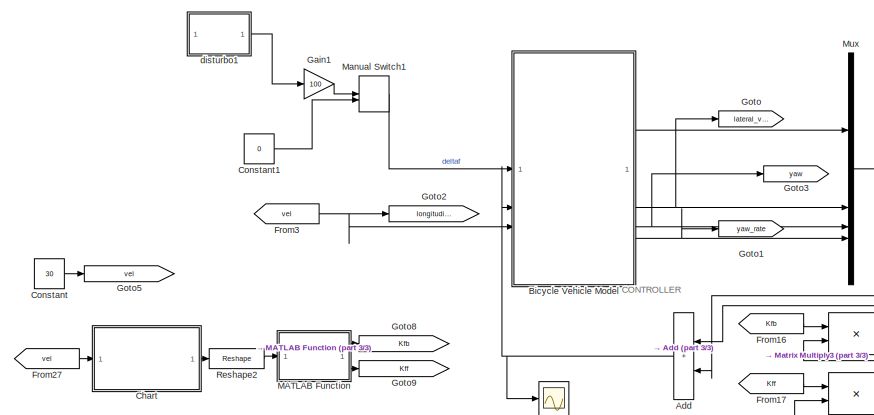
[diagram: root canvas - part 1/3, top left region]
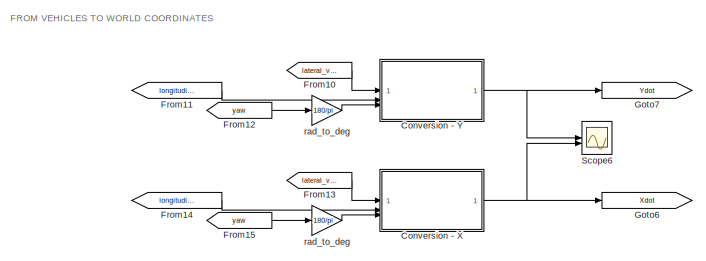
[diagram: root canvas - part 2/3, top right region]
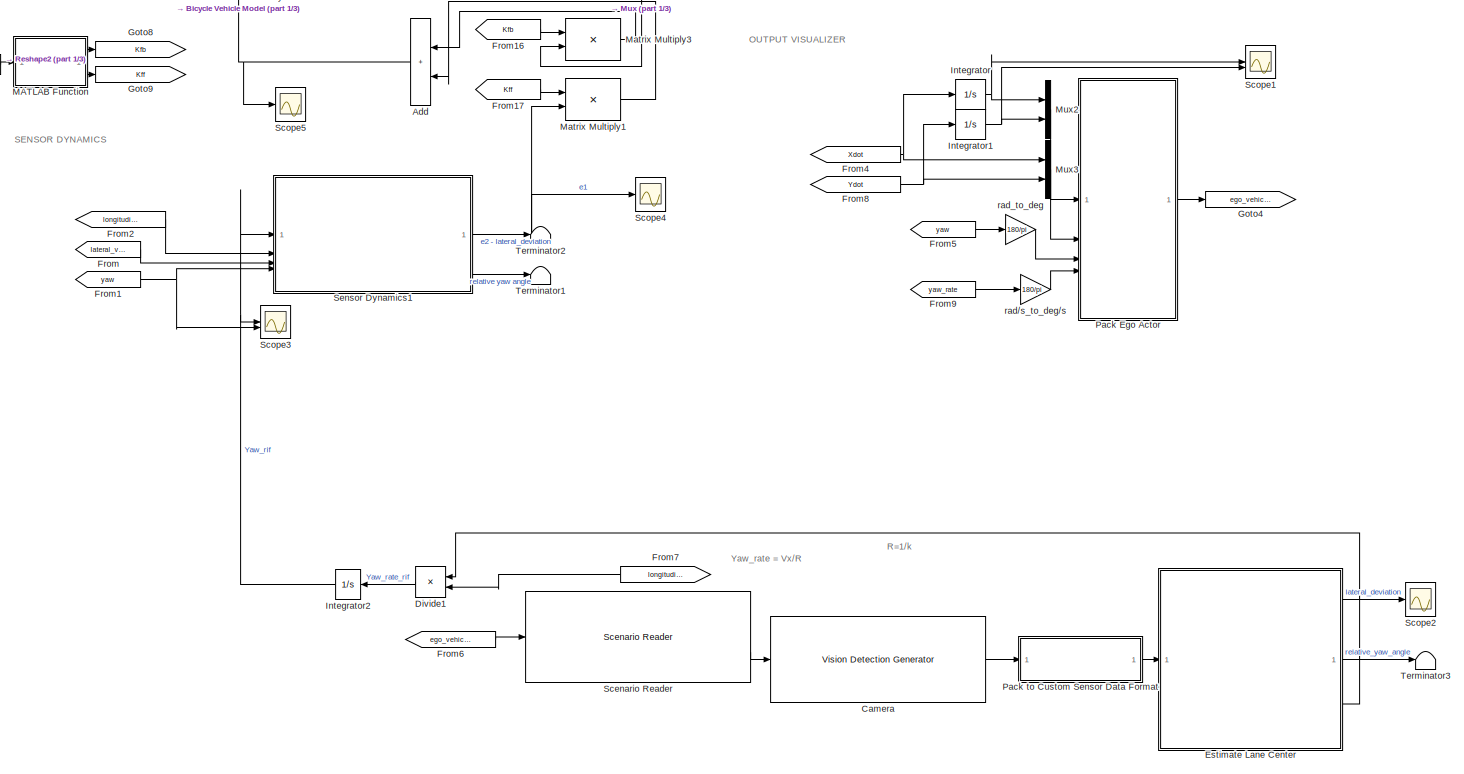
[diagram: root canvas - part 3/3, full width, middle band]
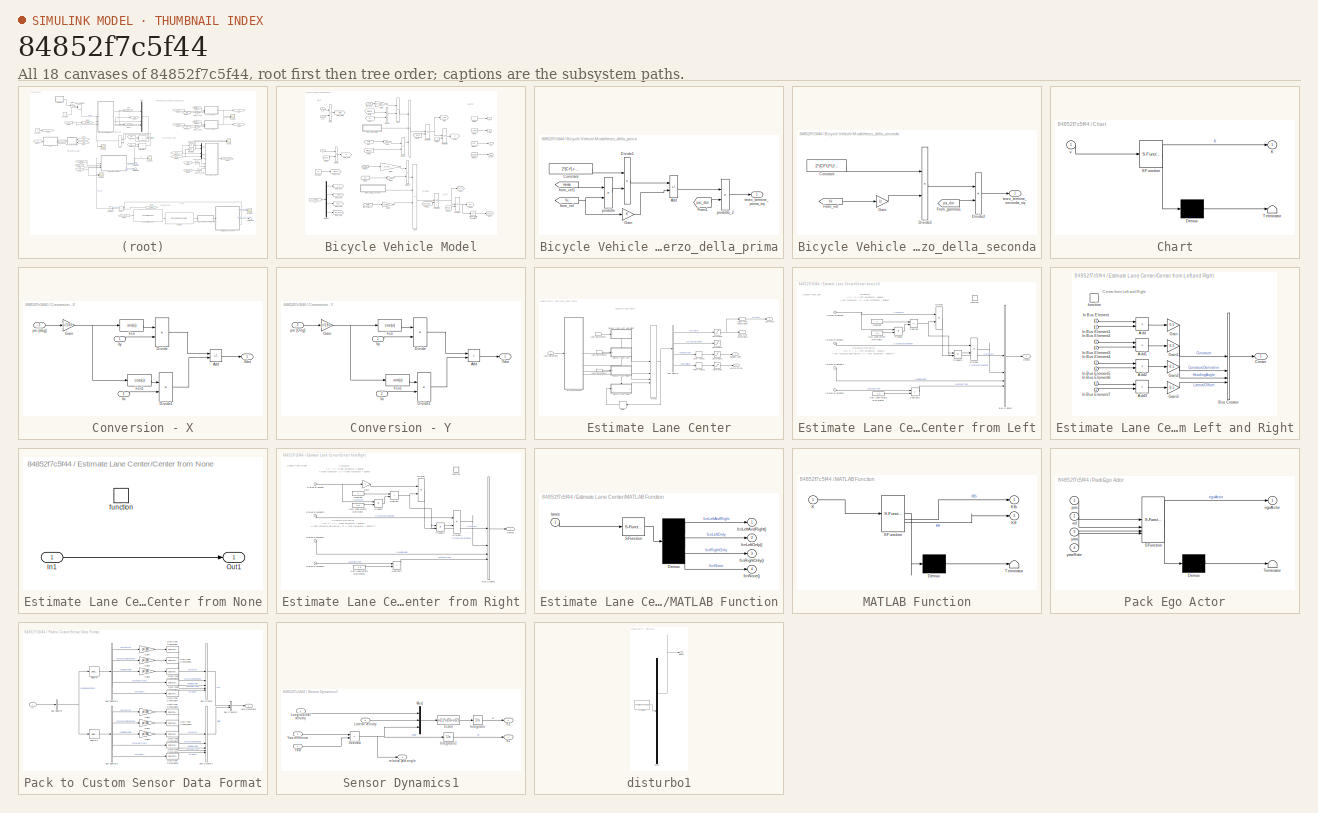
[diagram: thumbnail index - all 18 canvases of the model, root first then tree order]
MODEL slx_84852f7c5f44
KIND model
CONFIG AbsTol = auto
CONFIG EnableMultiTasking = off
CONFIG FixedStep = auto
CONFIG MaxStep = auto
CONFIG MinStep = auto
CONFIG RelTol = 1e-3
CONFIG SampleTimeConstraint = Unconstrained
CONFIG SolverName = ode23tb
CONFIG StartTime = 0.0
CONFIG StopTime = 50
WORKSPACE source: mxarray member
WORKSPACE BusActorsActors: canlib.Parameter (value not decoded)
BLOCK [Sum] Add
  IconShape = rectangular
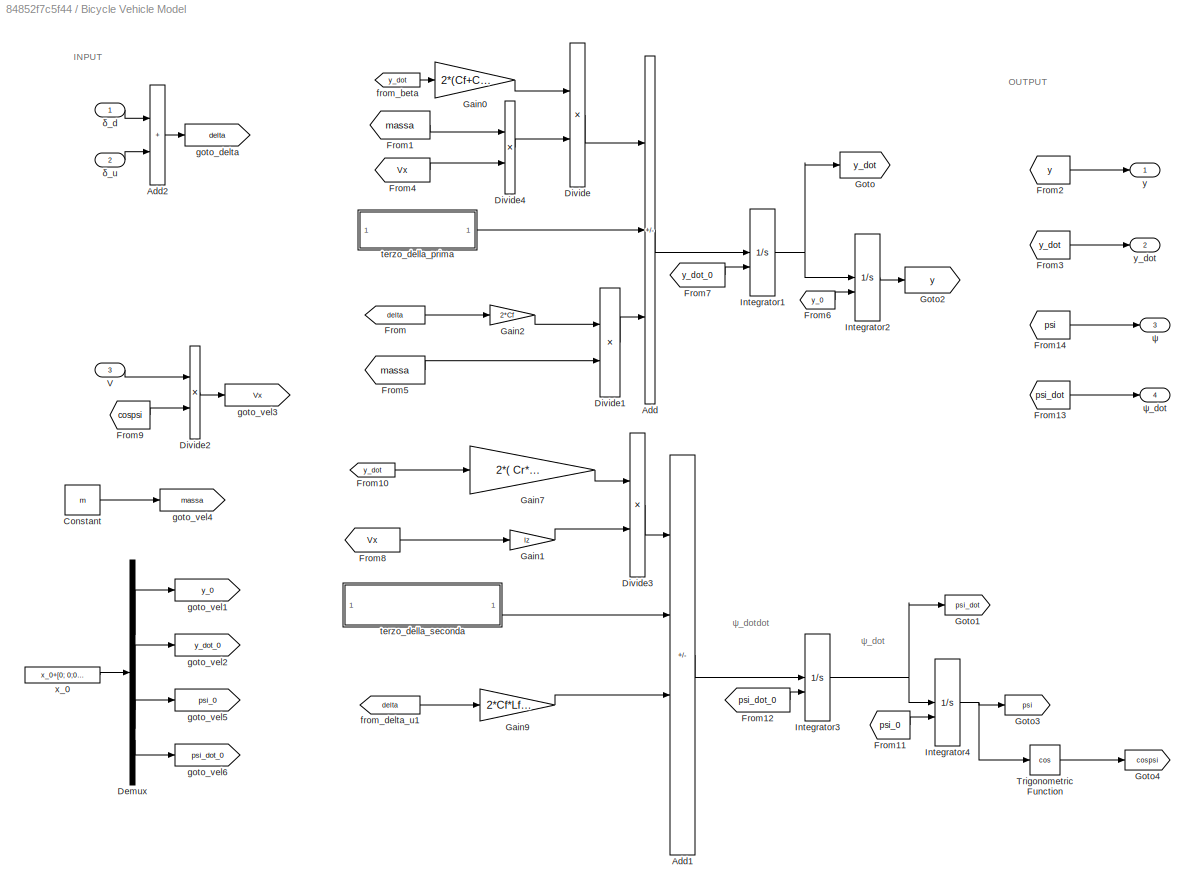
BLOCK [SubSystem] Bicycle Vehicle Model
BLOCK [Sum] Bicycle Vehicle Model/Add
  IconShape = rectangular
  Inputs = -++
BLOCK [Sum] Bicycle Vehicle Model/Add1
  IconShape = rectangular
  Inputs = --++
BLOCK [Sum] Bicycle Vehicle Model/Add2
  IconShape = rectangular
BLOCK [Constant] Bicycle Vehicle Model/Constant
  Value = m
BLOCK [Demux] Bicycle Vehicle Model/Demux
BLOCK [Product] Bicycle Vehicle Model/Divide
  Inputs = */
BLOCK [Product] Bicycle Vehicle Model/Divide1
  Inputs = */
BLOCK [Product] Bicycle Vehicle Model/Divide2
  Inputs = **
BLOCK [Product] Bicycle Vehicle Model/Divide3
  Inputs = */
BLOCK [Product] Bicycle Vehicle Model/Divide4
  Inputs = **
BLOCK [From] Bicycle Vehicle Model/From
  GotoTag = delta
  TagVisibility = global
BLOCK [From] Bicycle Vehicle Model/From1
  GotoTag = massa
  TagVisibility = global
BLOCK [From] Bicycle Vehicle Model/From10
  GotoTag = y_dot
  TagVisibility = global
BLOCK [From] Bicycle Vehicle Model/From11
  GotoTag = psi_0
  TagVisibility = global
BLOCK [From] Bicycle Vehicle Model/From12
  GotoTag = psi_dot_0
  TagVisibility = global
BLOCK [From] Bicycle Vehicle Model/From13
  GotoTag = psi_dot
  TagVisibility = global
BLOCK [From] Bicycle Vehicle Model/From14
  GotoTag = psi
  TagVisibility = global
BLOCK [From] Bicycle Vehicle Model/From2
  GotoTag = y
  TagVisibility = global
BLOCK [From] Bicycle Vehicle Model/From3
  GotoTag = y_dot
  TagVisibility = global
BLOCK [From] Bicycle Vehicle Model/From4
  GotoTag = Vx
  TagVisibility = global
BLOCK [From] Bicycle Vehicle Model/From5
  GotoTag = massa
  TagVisibility = global
BLOCK [From] Bicycle Vehicle Model/From6
  GotoTag = y_0
  TagVisibility = global
BLOCK [From] Bicycle Vehicle Model/From7
  GotoTag = y_dot_0
  TagVisibility = global
BLOCK [From] Bicycle Vehicle Model/From8
  GotoTag = Vx
  TagVisibility = global
BLOCK [From] Bicycle Vehicle Model/From9
  GotoTag = cospsi
  TagVisibility = global
BLOCK [Gain] Bicycle Vehicle Model/Gain0
  Gain = 2*(Cf+Cr)
BLOCK [Gain] Bicycle Vehicle Model/Gain1
  Gain = Iz
BLOCK [Gain] Bicycle Vehicle Model/Gain2
  Gain = 2*Cf
BLOCK [Gain] Bicycle Vehicle Model/Gain7
  Gain = 2*( Cr*Lr  - Cf*Lf )
BLOCK [Gain] Bicycle Vehicle Model/Gain9
  Gain = 2*Cf*Lf/Iz
BLOCK [Goto] Bicycle Vehicle Model/Goto
  GotoTag = y_dot
  TagVisibility = global
BLOCK [Goto] Bicycle Vehicle Model/Goto1
  GotoTag = psi_dot
  TagVisibility = global
BLOCK [Goto] Bicycle Vehicle Model/Goto2
  GotoTag = y
  TagVisibility = global
BLOCK [Goto] Bicycle Vehicle Model/Goto3
  GotoTag = psi
  TagVisibility = global
BLOCK [Goto] Bicycle Vehicle Model/Goto4
  GotoTag = cospsi
  TagVisibility = global
BLOCK [Integrator] Bicycle Vehicle Model/Integrator1
  InitialConditionSource = external
BLOCK [Integrator] Bicycle Vehicle Model/Integrator2
  InitialConditionSource = external
BLOCK [Integrator] Bicycle Vehicle Model/Integrator3
  InitialConditionSource = external
BLOCK [Integrator] Bicycle Vehicle Model/Integrator4
  InitialConditionSource = external
  LowerSaturationLimit = 0
BLOCK [Trigonometry] Bicycle Vehicle Model/Trigonometric Function
  Operator = cos
BLOCK [Inport] Bicycle Vehicle Model/V
  Port = 3
BLOCK [From] Bicycle Vehicle Model/from_beta
  GotoTag = y_dot
  TagVisibility = global
BLOCK [From] Bicycle Vehicle Model/from_delta_u1
  GotoTag = delta
  TagVisibility = global
BLOCK [Goto] Bicycle Vehicle Model/goto_delta 
  GotoTag = delta
  TagVisibility = global
BLOCK [Goto] Bicycle Vehicle Model/goto_vel1
  GotoTag = y_0
  TagVisibility = global
BLOCK [Goto] Bicycle Vehicle Model/goto_vel2
  GotoTag = y_dot_0
  TagVisibility = global
BLOCK [Goto] Bicycle Vehicle Model/goto_vel3
  GotoTag = Vx
  TagVisibility = global
BLOCK [Goto] Bicycle Vehicle Model/goto_vel4
  GotoTag = massa
  TagVisibility = global
BLOCK [Goto] Bicycle Vehicle Model/goto_vel5
  GotoTag = psi_0
  TagVisibility = global
BLOCK [Goto] Bicycle Vehicle Model/goto_vel6
  GotoTag = psi_dot_0
  TagVisibility = global
BLOCK [SubSystem] Bicycle Vehicle Model/terzo_della_prima
BLOCK [Sum] Bicycle Vehicle Model/terzo_della_prima/Add
  IconShape = rectangular
  Inputs = +-
BLOCK [Constant] Bicycle Vehicle Model/terzo_della_prima/Constant
  Value = 2*(Cr*Lr-  Cf*Lf)
BLOCK [Product] Bicycle Vehicle Model/terzo_della_prima/Divide1
  Inputs = */
BLOCK [From] Bicycle Vehicle Model/terzo_della_prima/From1
  GotoTag = psi_dot
  TagVisibility = global
BLOCK [Gain] Bicycle Vehicle Model/terzo_della_prima/Gain
BLOCK [From] Bicycle Vehicle Model/terzo_della_prima/from_vel
  GotoTag = Vx
  TagVisibility = global
BLOCK [From] Bicycle Vehicle Model/terzo_della_prima/from_vel1
  GotoTag = massa
  TagVisibility = global
BLOCK [Product] Bicycle Vehicle Model/terzo_della_prima/prodotto
  Inputs = **
BLOCK [Product] Bicycle Vehicle Model/terzo_della_prima/prodotto_2
  Inputs = **
BLOCK [Outport] Bicycle Vehicle Model/terzo_della_prima/terzo_termine_prima_eq 
BLOCK [SubSystem] Bicycle Vehicle Model/terzo_della_seconda
BLOCK [Constant] Bicycle Vehicle Model/terzo_della_seconda/Constant
  Value = 2*(Cf*Lf*Lf + Cr*Lr*Lr)
BLOCK [Product] Bicycle Vehicle Model/terzo_della_seconda/Divide2
  Inputs = **
BLOCK [Product] Bicycle Vehicle Model/terzo_della_seconda/Divide3
  Inputs = */
BLOCK [From] Bicycle Vehicle Model/terzo_della_seconda/From_gamma1
  GotoTag = psi_dot
  TagVisibility = global
BLOCK [From] Bicycle Vehicle Model/terzo_della_seconda/From_vel
  GotoTag = Vx
  TagVisibility = global
BLOCK [Gain] Bicycle Vehicle Model/terzo_della_seconda/Gain
  Gain = Iz
BLOCK [Outport] Bicycle Vehicle Model/terzo_della_seconda/terzo_termine_seconda_eq 
BLOCK [Constant] Bicycle Vehicle Model/x_0 
  Value = x_0+[0; 0;0; 0]
BLOCK [Outport] Bicycle Vehicle Model/y
BLOCK [Outport] Bicycle Vehicle Model/y_dot
  Port = 2
BLOCK [Inport] Bicycle Vehicle Model/δ_d
BLOCK [Inport] Bicycle Vehicle Model/δ_u
  Port = 2
BLOCK [Outport] Bicycle Vehicle Model/ψ
  Port = 3
BLOCK [Outport] Bicycle Vehicle Model/ψ_dot
  Port = 4
BLOCK [Reference] Camera  REF=drivingscenarioandsensors/Vision Detection Generator
  SourceBlock = drivingscenarioandsensors/Vision Detection Generator
  SourceType = visionDetectionGenerator
BLOCK [SubSystem] Chart
  ErrorFcn = Stateflow.Translate.translate
  PermitHierarchicalResolution = ExplicitOnly
  SFBlockType = Chart
  TreatAsAtomicUnit = on
BLOCK [Demux] Chart/ Demux 
  Outputs = 1
BLOCK [S-Function] Chart/ SFunction 
  EnableBusSupport = on
  FunctionName = sf_sfun
  PortCounts = [1 2]
  SFcnIsStateOwnerBlock = off
  SFunctionDeploymentMode = off
  Tag = Stateflow S-Function 1
BLOCK [Terminator] Chart/ Terminator 
BLOCK [Outport] Chart/K
BLOCK [Inport] Chart/v
BLOCK [Constant] Constant
  Value = 30
BLOCK [Constant] Constant1
  Value = 0
BLOCK [SubSystem] Conversion - X
BLOCK [Sum] Conversion - X/Add
  IconShape = rectangular
  Inputs = -+
BLOCK [Product] Conversion - X/Divide
  Inputs = **
BLOCK [Product] Conversion - X/Divide1
  Inputs = **
BLOCK [Fcn] Conversion - X/Fcn
  Expr = sin(u)
BLOCK [Fcn] Conversion - X/Fcn1
  Expr = cos(u)
BLOCK [Gain] Conversion - X/Gain
  Gain = pi/180
BLOCK [Inport] Conversion - X/Vx
  Port = 2
BLOCK [Inport] Conversion - X/Vy
BLOCK [Outport] Conversion - X/Xdot
BLOCK [Inport] Conversion - X/psi [deg]
  Port = 3
BLOCK [SubSystem] Conversion - Y
BLOCK [Sum] Conversion - Y/Add
  IconShape = rectangular
BLOCK [Product] Conversion - Y/Divide
  Inputs = **
BLOCK [Product] Conversion - Y/Divide1
  Inputs = **
BLOCK [Fcn] Conversion - Y/Fcn
  Expr = cos(u)
BLOCK [Fcn] Conversion - Y/Fcn1
  Expr = sin(u)
BLOCK [Gain] Conversion - Y/Gain
  Gain = pi/180
BLOCK [Inport] Conversion - Y/Vx
  Port = 2
BLOCK [Inport] Conversion - Y/Vy
BLOCK [Outport] Conversion - Y/Ydot
BLOCK [Inport] Conversion - Y/psi [Deg]
  Port = 3
BLOCK [Product] Divide1
  Inputs = **
BLOCK [SubSystem] Estimate Lane Center
  VariantControl = v2
BLOCK [Outport] Estimate Lane Center/ Curvature
  Port = 3
  VectorParamsAs1DForOutWhenUnconnected = off
BLOCK [BusSelector] Estimate Lane Center/Bus Selector
  OutputSignals = Curvature,CurvatureDerivative,HeadingAngle,LateralOffset
BLOCK [SubSystem] Estimate Lane Center/Center from Left
  TreatAsAtomicUnit = on
BLOCK [SubSystem] Estimate Lane Center/Center from Left and Right
  TreatAsAtomicUnit = on
BLOCK [Sum] Estimate Lane Center/Center from Left and Right/Add
  IconShape = rectangular
BLOCK [Sum] Estimate Lane Center/Center from Left and Right/Add1
  IconShape = rectangular
BLOCK [Sum] Estimate Lane Center/Center from Left and Right/Add2
  IconShape = rectangular
BLOCK [Sum] Estimate Lane Center/Center from Left and Right/Add3
  IconShape = rectangular
BLOCK [BusCreator] Estimate Lane Center/Center from Left and Right/Bus Creator
  DisplayOption = bar
  InheritFromInputs = on
  Inputs = 4
BLOCK [Outport] Estimate Lane Center/Center from Left and Right/Center
  VectorParamsAs1DForOutWhenUnconnected = off
BLOCK [Gain] Estimate Lane Center/Center from Left and Right/Gain
  Gain = 0.5
BLOCK [Gain] Estimate Lane Center/Center from Left and Right/Gain1
  Gain = 0.5
BLOCK [Gain] Estimate Lane Center/Center from Left and Right/Gain2
  Gain = 0.5
BLOCK [Gain] Estimate Lane Center/Center from Left and Right/Gain3
  Gain = 0.5
BLOCK [Inport] Estimate Lane Center/Center from Left and Right/In Bus Element
BLOCK [Inport] Estimate Lane Center/Center from Left and Right/In Bus Element1
BLOCK [Inport] Estimate Lane Center/Center from Left and Right/In Bus Element2
BLOCK [Inport] Estimate Lane Center/Center from Left and Right/In Bus Element3
BLOCK [Inport] Estimate Lane Center/Center from Left and Right/In Bus Element4
BLOCK [Inport] Estimate Lane Center/Center from Left and Right/In Bus Element5
BLOCK [Inport] Estimate Lane Center/Center from Left and Right/In Bus Element6
BLOCK [Inport] Estimate Lane Center/Center from Left and Right/In Bus Element7
BLOCK [TriggerPort] Estimate Lane Center/Center from Left and Right/function
  StatesWhenEnabling = held
  TriggerType = function-call
  VariantControl = Variant
BLOCK [BusCreator] Estimate Lane Center/Center from Left/Bus Creator
  DisplayOption = bar
  InheritFromInputs = on
  Inputs = 4
BLOCK [Outport] Estimate Lane Center/Center from Left/Center
  VectorParamsAs1DForOutWhenUnconnected = off
BLOCK [Constant] Estimate Lane Center/Center from Left/Constant
  OutDataTypeStr = Inherit: Inherit via back propagation
BLOCK [Product] Estimate Lane Center/Center from Left/Divide
  Inputs = */
BLOCK [Product] Estimate Lane Center/Center from Left/Divide1
  Inputs = */
BLOCK [Constant] Estimate Lane Center/Center from Left/Half Lane Width Estimate
  OutDataTypeStr = Inherit: Inherit via back propagation
  Value = 1.8
BLOCK [Constant] Estimate Lane Center/Center from Left/Half Lane Width Estimate1
  OutDataTypeStr = Inherit: Inherit via back propagation
  Value = 1.8
BLOCK [Inport] Estimate Lane Center/Center from Left/In Bus Element
BLOCK [Inport] Estimate Lane Center/Center from Left/In Bus Element2
BLOCK [Inport] Estimate Lane Center/Center from Left/In Bus Element4
BLOCK [Inport] Estimate Lane Center/Center from Left/In Bus Element6
BLOCK [Product] Estimate Lane Center/Center from Left/Product
BLOCK [Product] Estimate Lane Center/Center from Left/Product1
BLOCK [Sum] Estimate Lane Center/Center from Left/Subtract
  IconShape = rectangular
  Inputs = +-
BLOCK [Sum] Estimate Lane Center/Center from Left/Subtract1
  IconShape = rectangular
  Inputs = +-
BLOCK [TriggerPort] Estimate Lane Center/Center from Left/function
  StatesWhenEnabling = held
  TriggerType = function-call
  VariantControl = Variant
BLOCK [SubSystem] Estimate Lane Center/Center from None
  TreatAsAtomicUnit = on
BLOCK [Inport] Estimate Lane Center/Center from None/In1
BLOCK [Outport] Estimate Lane Center/Center from None/Out1
  VectorParamsAs1DForOutWhenUnconnected = off
BLOCK [TriggerPort] Estimate Lane Center/Center from None/function
  StatesWhenEnabling = held
  TriggerType = function-call
  VariantControl = Variant
BLOCK [SubSystem] Estimate Lane Center/Center from Right
  TreatAsAtomicUnit = on
BLOCK [BusCreator] Estimate Lane Center/Center from Right/Bus Creator
  DisplayOption = bar
  InheritFromInputs = on
  Inputs = 4
BLOCK [Outport] Estimate Lane Center/Center from Right/Center
  VectorParamsAs1DForOutWhenUnconnected = off
BLOCK [Constant] Estimate Lane Center/Center from Right/Constant
  OutDataTypeStr = Inherit: Inherit via back propagation
BLOCK [Product] Estimate Lane Center/Center from Right/Divide
  Inputs = */
BLOCK [Product] Estimate Lane Center/Center from Right/Divide1
  Inputs = */
BLOCK [Gain] Estimate Lane Center/Center from Right/Gain
BLOCK [Constant] Estimate Lane Center/Center from Right/Half Lane Width Estimate
  OutDataTypeStr = Inherit: Inherit via back propagation
  Value = 1.8
BLOCK [Constant] Estimate Lane Center/Center from Right/Half Lane Width Estimate1
  OutDataTypeStr = Inherit: Inherit via back propagation
  Value = 1.8
BLOCK [Inport] Estimate Lane Center/Center from Right/In Bus Element
BLOCK [Inport] Estimate Lane Center/Center from Right/In Bus Element2
BLOCK [Inport] Estimate Lane Center/Center from Right/In Bus Element4
BLOCK [Inport] Estimate Lane Center/Center from Right/In Bus Element6
BLOCK [Product] Estimate Lane Center/Center from Right/Product
BLOCK [Product] Estimate Lane Center/Center from Right/Product1
BLOCK [Sum] Estimate Lane Center/Center from Right/Subtract
  IconShape = rectangular
BLOCK [Sum] Estimate Lane Center/Center from Right/Subtract1
  IconShape = rectangular
BLOCK [TriggerPort] Estimate Lane Center/Center from Right/function
  StatesWhenEnabling = held
  TriggerType = function-call
  VariantControl = Variant
BLOCK [DataTypeConversion] Estimate Lane Center/Data Type Conversion1
  OutDataTypeStr = double
  RndMeth = Floor
  SaturateOnIntegerOverflow = off
BLOCK [DataTypeConversion] Estimate Lane Center/Data Type Conversion3
  OutDataTypeStr = double
  RndMeth = Floor
  SaturateOnIntegerOverflow = off
BLOCK [Delay] Estimate Lane Center/Delay
  DelayLength = 1
  InputPortMap = u0
BLOCK [Outport] Estimate Lane Center/Heading Angle
  Port = 2
  VectorParamsAs1DForOutWhenUnconnected = off
BLOCK [Inport] Estimate Lane Center/Lane Detections
BLOCK [InportShadow] Estimate Lane Center/Lane Detections2
BLOCK [InportShadow] Estimate Lane Center/Lane Detections3
BLOCK [InportShadow] Estimate Lane Center/Lane Detections4
BLOCK [Outport] Estimate Lane Center/Lateral Offset
  VectorParamsAs1DForOutWhenUnconnected = off
BLOCK [SubSystem] Estimate Lane Center/MATLAB Function
  ErrorFcn = Stateflow.Translate.translate
  PermitHierarchicalResolution = ExplicitOnly
  SFBlockType = MATLAB Function
  TreatAsAtomicUnit = on
BLOCK [Demux] Estimate Lane Center/MATLAB Function/ Demux 
BLOCK [S-Function] Estimate Lane Center/MATLAB Function/ SFunction 
  EnableBusSupport = on
  FunctionName = sf_sfun
  PortCounts = [1 1]
  SFcnIsStateOwnerBlock = off
  SFunctionDeploymentMode = off
  Tag = Stateflow S-Function 9
BLOCK [Outport] Estimate Lane Center/MATLAB Function/fcnLeftAndRight()
  VectorParamsAs1DForOutWhenUnconnected = off
BLOCK [Outport] Estimate Lane Center/MATLAB Function/fcnLeftOnly()
  Port = 2
  VectorParamsAs1DForOutWhenUnconnected = off
BLOCK [Outport] Estimate Lane Center/MATLAB Function/fcnNone()
  Port = 4
  VectorParamsAs1DForOutWhenUnconnected = off
BLOCK [Outport] Estimate Lane Center/MATLAB Function/fcnRightOnly()
  Port = 3
  VectorParamsAs1DForOutWhenUnconnected = off
BLOCK [Inport] Estimate Lane Center/MATLAB Function/lanes
BLOCK [Merge] Estimate Lane Center/Merge
  Inputs = 4
BLOCK [Saturate] Estimate Lane Center/Saturation
  UpperLimit = inf
BLOCK [Saturate] Estimate Lane Center/Saturation1
  LowerLimit = -0.6
  UpperLimit = 0.6
BLOCK [Saturate] Estimate Lane Center/Saturation2
  LowerLimit = -0.15
  UpperLimit = 0.15
BLOCK [Saturate] Estimate Lane Center/Saturation3
  LowerLimit = -0.15
  UpperLimit = 0.15
BLOCK [UnaryMinus] Estimate Lane Center/Unary Minus
BLOCK [UnaryMinus] Estimate Lane Center/Unary Minus1
BLOCK [From] From
  GotoTag = lateral_vel
BLOCK [From] From1
  GotoTag = yaw
BLOCK [From] From10
  GotoTag = lateral_vel
BLOCK [From] From11
  GotoTag = longitudinal_vel
BLOCK [From] From12
  GotoTag = yaw
BLOCK [From] From13
  GotoTag = lateral_vel
BLOCK [From] From14
  GotoTag = longitudinal_vel
BLOCK [From] From15
  GotoTag = yaw
BLOCK [From] From16
  GotoTag = Kfb
BLOCK [From] From17
  GotoTag = Kff
BLOCK [From] From2
  GotoTag = longitudinal_vel
BLOCK [From] From27
  GotoTag = vel
BLOCK [From] From3
  GotoTag = vel
BLOCK [From] From4
  GotoTag = Xdot
BLOCK [From] From5
  GotoTag = yaw
BLOCK [From] From6
  GotoTag = ego_vehicle
BLOCK [From] From7
  GotoTag = longitudinal_vel
BLOCK [From] From8
  GotoTag = Ydot
BLOCK [From] From9
  GotoTag = yaw_rate
BLOCK [Gain] Gain1
  Gain = 100
BLOCK [Goto] Goto
  GotoTag = lateral_vel
BLOCK [Goto] Goto1
  GotoTag = yaw_rate
BLOCK [Goto] Goto2
  GotoTag = longitudinal_vel
BLOCK [Goto] Goto3
  GotoTag = yaw
BLOCK [Goto] Goto4
  GotoTag = ego_vehicle
BLOCK [Goto] Goto5
  GotoTag = vel
BLOCK [Goto] Goto6
  GotoTag = Xdot
BLOCK [Goto] Goto7
  GotoTag = Ydot
BLOCK [Goto] Goto8
  GotoTag = Kfb
BLOCK [Goto] Goto9
  GotoTag = Kff
BLOCK [Integrator] Integrator
BLOCK [Integrator] Integrator1
  InitialCondition = -0.02
BLOCK [Integrator] Integrator2
BLOCK [SubSystem] MATLAB Function
  ErrorFcn = Stateflow.Translate.translate
  LibrarySourceBlock = simulink/User-Defined\nFunctions/MATLAB Function
  PermitHierarchicalResolution = ExplicitOnly
  SFBlockType = MATLAB Function
  TreatAsAtomicUnit = on
BLOCK [Demux] MATLAB Function/ Demux 
  Outputs = 1
BLOCK [S-Function] MATLAB Function/ SFunction 
  EnableBusSupport = on
  FunctionName = sf_sfun
  PortCounts = [1 3]
  SFcnIsStateOwnerBlock = off
  SFunctionDeploymentMode = off
  Tag = Stateflow S-Function 2
BLOCK [Terminator] MATLAB Function/ Terminator 
BLOCK [Inport] MATLAB Function/K
BLOCK [Outport] MATLAB Function/Kfb
BLOCK [Outport] MATLAB Function/Kff
  Port = 2
BLOCK [ManualSwitch] Manual Switch1
  CurrentSetting = 0
BLOCK [Product] Matrix Multiply1
  Multiplication = Matrix(*)
BLOCK [Product] Matrix Multiply3
  Multiplication = Matrix(*)
BLOCK [Mux] Mux
  DisplayOption = bar
BLOCK [Mux] Mux2
  DisplayOption = bar
  Inputs = 2
BLOCK [Mux] Mux3
  DisplayOption = bar
  Inputs = 2
BLOCK [SubSystem] Pack Ego Actor
  ErrorFcn = Stateflow.Translate.translate
  PermitHierarchicalResolution = ExplicitOnly
  SFBlockType = MATLAB Function
  TreatAsAtomicUnit = on
BLOCK [Demux] Pack Ego Actor/ Demux 
  Outputs = 1
BLOCK [S-Function] Pack Ego Actor/ SFunction 
  EnableBusSupport = on
  FunctionName = sf_sfun
  PortCounts = [4 2]
  SFcnIsStateOwnerBlock = off
  SFunctionDeploymentMode = off
  Tag = Stateflow S-Function 5
BLOCK [Terminator] Pack Ego Actor/ Terminator 
BLOCK [Outport] Pack Ego Actor/egoActor
  VectorParamsAs1DForOutWhenUnconnected = off
BLOCK [Inport] Pack Ego Actor/pos
BLOCK [Inport] Pack Ego Actor/vel
  Port = 2
BLOCK [Inport] Pack Ego Actor/yaw
  Port = 3
BLOCK [Inport] Pack Ego Actor/yawRate
  Port = 4
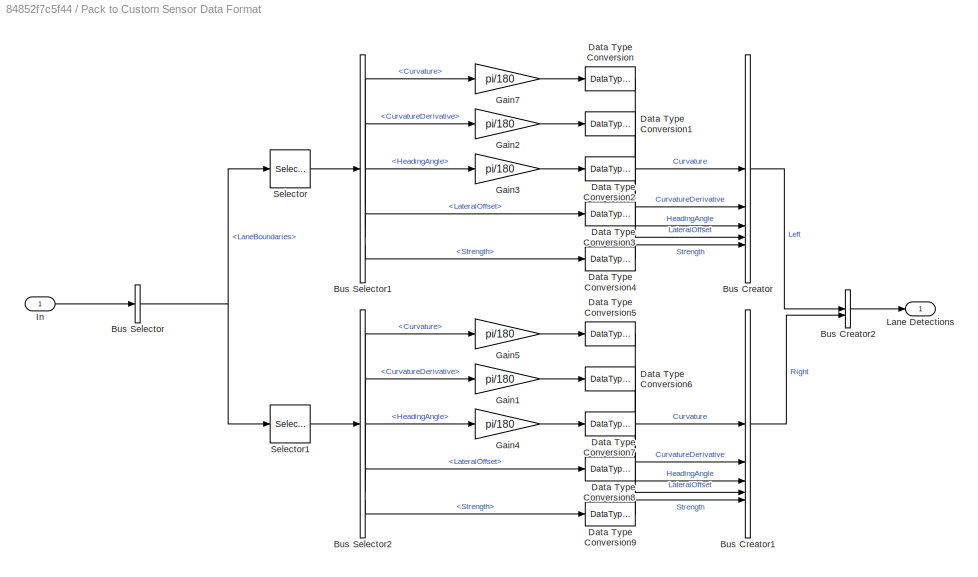
BLOCK [SubSystem] Pack to Custom Sensor Data Format
BLOCK [BusCreator] Pack to Custom Sensor Data Format/Bus Creator
  DisplayOption = bar
  InheritFromInputs = on
  Inputs = 5
  OutDataTypeStr = Bus: LaneSensorBoundaries
BLOCK [BusCreator] Pack to Custom Sensor Data Format/Bus Creator1
  DisplayOption = bar
  InheritFromInputs = on
  Inputs = 5
  OutDataTypeStr = Bus: LaneSensorBoundaries
BLOCK [BusCreator] Pack to Custom Sensor Data Format/Bus Creator2
  DisplayOption = bar
  InheritFromInputs = on
  Inputs = 2
  OutDataTypeStr = Bus: LaneSensor
BLOCK [BusSelector] Pack to Custom Sensor Data Format/Bus Selector
  OutputSignals = LaneBoundaries
BLOCK [BusSelector] Pack to Custom Sensor Data Format/Bus Selector1
  OutputSignals = Curvature,CurvatureDerivative,HeadingAngle,LateralOffset,Strength
BLOCK [BusSelector] Pack to Custom Sensor Data Format/Bus Selector2
  OutputSignals = Curvature,CurvatureDerivative,HeadingAngle,LateralOffset,Strength
BLOCK [DataTypeConversion] Pack to Custom Sensor Data Format/Data Type Conversion
  OutDataTypeStr = single
  RndMeth = Floor
  SaturateOnIntegerOverflow = off
BLOCK [DataTypeConversion] Pack to Custom Sensor Data Format/Data Type Conversion1
  OutDataTypeStr = single
  RndMeth = Floor
  SaturateOnIntegerOverflow = off
BLOCK [DataTypeConversion] Pack to Custom Sensor Data Format/Data Type Conversion2
  OutDataTypeStr = single
  RndMeth = Floor
  SaturateOnIntegerOverflow = off
BLOCK [DataTypeConversion] Pack to Custom Sensor Data Format/Data Type Conversion3
  OutDataTypeStr = single
  RndMeth = Floor
  SaturateOnIntegerOverflow = off
BLOCK [DataTypeConversion] Pack to Custom Sensor Data Format/Data Type Conversion4
  OutDataTypeStr = single
  RndMeth = Floor
  SaturateOnIntegerOverflow = off
BLOCK [DataTypeConversion] Pack to Custom Sensor Data Format/Data Type Conversion5
  OutDataTypeStr = single
  RndMeth = Floor
  SaturateOnIntegerOverflow = off
BLOCK [DataTypeConversion] Pack to Custom Sensor Data Format/Data Type Conversion6
  OutDataTypeStr = single
  RndMeth = Floor
  SaturateOnIntegerOverflow = off
BLOCK [DataTypeConversion] Pack to Custom Sensor Data Format/Data Type Conversion7
  OutDataTypeStr = single
  RndMeth = Floor
  SaturateOnIntegerOverflow = off
BLOCK [DataTypeConversion] Pack to Custom Sensor Data Format/Data Type Conversion8
  OutDataTypeStr = single
  RndMeth = Floor
  SaturateOnIntegerOverflow = off
BLOCK [DataTypeConversion] Pack to Custom Sensor Data Format/Data Type Conversion9
  OutDataTypeStr = single
  RndMeth = Floor
  SaturateOnIntegerOverflow = off
BLOCK [Gain] Pack to Custom Sensor Data Format/Gain1
  Gain = pi/180
BLOCK [Gain] Pack to Custom Sensor Data Format/Gain2
  Gain = pi/180
BLOCK [Gain] Pack to Custom Sensor Data Format/Gain3
  Gain = pi/180
BLOCK [Gain] Pack to Custom Sensor Data Format/Gain4
  Gain = pi/180
BLOCK [Gain] Pack to Custom Sensor Data Format/Gain5
  Gain = pi/180
BLOCK [Gain] Pack to Custom Sensor Data Format/Gain7
  Gain = pi/180
BLOCK [Inport] Pack to Custom Sensor Data Format/In
BLOCK [Outport] Pack to Custom Sensor Data Format/Lane Detections
  VectorParamsAs1DForOutWhenUnconnected = off
BLOCK [Selector] Pack to Custom Sensor Data Format/Selector
  IndexOptions = Index vector (dialog)
  Indices = 1
  InputPortWidth = 2
  OutputSizes = 1
BLOCK [Selector] Pack to Custom Sensor Data Format/Selector1
  IndexOptions = Index vector (dialog)
  Indices = 2
  InputPortWidth = 2
  OutputSizes = 1
BLOCK [Reshape] Reshape2
  OutputDimensionality = Customize
  OutputDimensions = [1,5]
BLOCK [Reference] Scenario Reader  REF=drivingscenarioandsensors/Scenario Reader
  SourceBlock = drivingscenarioandsensors/Scenario Reader
  SourceType = driving.scenario.internal.ScenarioReader
BLOCK [Scope] Scope1
  Floating = off
  NumInputPorts = 2
  ScopeSpecificationString = Simulink.scopes.TimeScopeBlockCfg('CurrentConfiguration', extmgr.ConfigurationSet(extmgr.Configuration('Core','General UI',true),extmgr.Configuration('Core','Source UI',true),extmgr.Configuration('Sources','WiredSimulink',true,'DataLoggingVariableName','ScopeData1'),extmgr.Configuration('Visuals','Time Domain',true,'SerializedDisplays',{struct('MinYLimReal','-47.45427','MaxYLimReal','443.48839','Y...<+2197ch>
BLOCK [Scope] Scope2
  Floating = off
  NumInputPorts = 1
  ScopeSpecificationString = Simulink.scopes.TimeScopeBlockCfg('CurrentConfiguration', extmgr.ConfigurationSet(extmgr.Configuration('Core','General UI',true),extmgr.Configuration('Core','Source UI',true),extmgr.Configuration('Sources','WiredSimulink',true,'DataLoggingVariableName','ScopeData1'),extmgr.Configuration('Visuals','Time Domain',true,'SerializedDisplays',{struct('MinYLimReal','-0.86733','MaxYLimReal','2.80593','YLab...<+2295ch>
BLOCK [Scope] Scope3
  Floating = off
  NumInputPorts = 2
  ScopeSpecificationString = Simulink.scopes.TimeScopeBlockCfg('CurrentConfiguration', extmgr.ConfigurationSet(extmgr.Configuration('Core','General UI',true),extmgr.Configuration('Core','Source UI',true),extmgr.Configuration('Sources','WiredSimulink',true,'DataLoggingVariableName','ScopeData1'),extmgr.Configuration('Visuals','Time Domain',true,'SerializedDisplays',{struct('MinYLimReal','-0.05762','MaxYLimReal','0.16228','YLab...<+1724ch>
BLOCK [Scope] Scope4
  Floating = off
  NumInputPorts = 1
  ScopeSpecificationString = Simulink.scopes.TimeScopeBlockCfg('CurrentConfiguration', extmgr.ConfigurationSet(extmgr.Configuration('Core','General UI',true),extmgr.Configuration('Core','Source UI',true),extmgr.Configuration('Sources','WiredSimulink',true,'DataLoggingVariableName','ScopeData1'),extmgr.Configuration('Visuals','Time Domain',true,'SerializedDisplays',{struct('MinYLimReal','-0.06474','MaxYLimReal','0.11625','YLab...<+2256ch>
BLOCK [Scope] Scope5
  Floating = off
  NumInputPorts = 1
  ScopeSpecificationString = Simulink.scopes.TimeScopeBlockCfg('CurrentConfiguration', extmgr.ConfigurationSet(extmgr.Configuration('Core','General UI',true),extmgr.Configuration('Core','Source UI',true),extmgr.Configuration('Sources','WiredSimulink',true,'DataLoggingVariableName','ScopeData2'),extmgr.Configuration('Visuals','Time Domain',true,'SerializedDisplays',{struct('MinYLimReal','-0.03713','MaxYLimReal','0.05633','YLab...<+2255ch>
BLOCK [Scope] Scope6
  Floating = off
  NumInputPorts = 2
  ScopeSpecificationString = Simulink.scopes.TimeScopeBlockCfg('CurrentConfiguration', extmgr.ConfigurationSet(extmgr.Configuration('Core','General UI',true),extmgr.Configuration('Core','Source UI',true),extmgr.Configuration('Sources','WiredSimulink',true,'DataLoggingVariableName','ScopeData1'),extmgr.Configuration('Visuals','Time Domain',true,'SerializedDisplays',{struct('MinYLimReal','-0.62584','MaxYLimReal','5.63253','YLab...<+2197ch>
BLOCK [SubSystem] Sensor Dynamics1
BLOCK [Integrator] Sensor Dynamics1/Integrator
BLOCK [Integrator] Sensor Dynamics1/Integrator2
BLOCK [Inport] Sensor Dynamics1/Lateral velocity
  Port = 3
BLOCK [Inport] Sensor Dynamics1/Longitudinal velocity
  Port = 2
BLOCK [Mux] Sensor Dynamics1/Mux1
  DisplayOption = bar
  Inputs = [1 1 1]
BLOCK [Sum] Sensor Dynamics1/Subtract
  IconShape = rectangular
  Inputs = +-
BLOCK [Inport] Sensor Dynamics1/Yaw 
  Port = 4
BLOCK [Inport] Sensor Dynamics1/Yaw reference
BLOCK [Outport] Sensor Dynamics1/e1
  VectorParamsAs1DForOutWhenUnconnected = off
BLOCK [Fcn] Sensor Dynamics1/e1dot
  Expr = u(1)*u(3)+u(2)
BLOCK [Outport] Sensor Dynamics1/e2
  Port = 2
  VectorParamsAs1DForOutWhenUnconnected = off
BLOCK [Outport] Sensor Dynamics1/relative yaw angle
  Port = 3
  VectorParamsAs1DForOutWhenUnconnected = off
BLOCK [Terminator] Terminator1
BLOCK [Terminator] Terminator2
BLOCK [Terminator] Terminator3
BLOCK [SubSystem] disturbo1
  ClipboardFcn = sigbuilder_block('clipboard');
  CloseFcn = sigbuilder_block('close');
  ContinueFcn = sigbuilder_block('continue');
  CopyFcn = sigbuilder_block('copy');
  DeleteFcn = sigbuilder_block('delete');
  LoadFcn = sigbuilder_block('load');
  MaskHideContents = on
  ModelCloseFcn = sigbuilder_block('modelClose');
  NameChangeFcn = sigbuilder_block('namechange');
  OpenFcn = sigbuilder_block('open',[406.2 255 401.4 229.8 ]);
  PauseFcn = sigbuilder_block('pause');
  PreSaveFcn = sigbuilder_block('preSave');
  StartFcn = sigbuilder_block('start');
  StopFcn = sigbuilder_block('stop');
  Tag = STV Subsys
BLOCK [Demux] disturbo1/Demux
  DisplayOption = none
  Outputs = 1
  Tag = STV Demux
BLOCK [FromWorkspace] disturbo1/FromWs
  Tag = STV FromWs
  VariableName = tuvar
BLOCK [Outport] disturbo1/Signal 1
  Tag = STV Outport
BLOCK [Gain] rad//s_to_deg//s
  Gain = 180/pi
BLOCK [Gain] rad_to_deg
  Gain = 180/pi
BLOCK [Gain] rad_to_deg 
  Gain = 180/pi
BLOCK [Gain] rad_to_deg  
  Gain = 180/pi
ANNOTATION (root): CONTROLLER
ANNOTATION (root): FROM VEHICLES TO WORLD COORDINATES
ANNOTATION (root): OUTPUT VISUALIZER
ANNOTATION (root): R=1/k
ANNOTATION (root): SENSOR DYNAMICS
ANNOTATION (root): Yaw_rate = Vx/R
ANNOTATION Bicycle Vehicle Model: ψ_dot
ANNOTATION Bicycle Vehicle Model: ψ_dotdot
ANNOTATION Bicycle Vehicle Model: INPUT
ANNOTATION Bicycle Vehicle Model: OUTPUT
ANNOTATION Estimate Lane Center: Estimate Lane Center
ANNOTATION Estimate Lane Center/Center from Left: Center from Left
ANNOTATION Estimate Lane Center/Center from Left: Curvature = 1 / ( 1 / (left curvature) – guard) = left curvature / (1 – (left curvature) * guard).
ANNOTATION Estimate Lane Center/Center from Left: Curvature Derivative = D[ 1 / ( 1 / (left curvature) – guard)] = left curvature derivative / (1 – (left curvature) * guard)^2.
ANNOTATION Estimate Lane Center/Center from Left and Right: Center from Left and Right
ANNOTATION Estimate Lane Center/Center from Right: Center from Right
ANNOTATION Estimate Lane Center/Center from Right: Curvature = 1 / ( 1 / (right curvature) + guard) = right curvature / (1 + (right curvature) * guard)
ANNOTATION Estimate Lane Center/Center from Right: Curvature Derivative = D[ 1 / ( 1 / (right curvature) + guard)] = right curvature derivative / (1 + (right curvature) * guard)^2
NET Add:1 -> Bicycle Vehicle Model:2, Scope5:1
LINE Bicycle Vehicle Model/Add1:1 -> Bicycle Vehicle Model/Integrator3:1
LINE Bicycle Vehicle Model/Add2:1 -> Bicycle Vehicle Model/goto_delta :1
LINE Bicycle Vehicle Model/Add:1 -> Bicycle Vehicle Model/Integrator1:1
LINE Bicycle Vehicle Model/Constant:1 -> Bicycle Vehicle Model/goto_vel4:1
LINE Bicycle Vehicle Model/Demux:1 -> Bicycle Vehicle Model/goto_vel1:1
LINE Bicycle Vehicle Model/Demux:2 -> Bicycle Vehicle Model/goto_vel2:1
LINE Bicycle Vehicle Model/Demux:3 -> Bicycle Vehicle Model/goto_vel5:1
LINE Bicycle Vehicle Model/Demux:4 -> Bicycle Vehicle Model/goto_vel6:1
LINE Bicycle Vehicle Model/Divide1:1 -> Bicycle Vehicle Model/Add:3
LINE Bicycle Vehicle Model/Divide2:1 -> Bicycle Vehicle Model/goto_vel3:1
LINE Bicycle Vehicle Model/Divide3:1 -> Bicycle Vehicle Model/Add1:1
LINE Bicycle Vehicle Model/Divide4:1 -> Bicycle Vehicle Model/Divide:2
LINE Bicycle Vehicle Model/Divide:1 -> Bicycle Vehicle Model/Add:1
LINE Bicycle Vehicle Model/From10:1 -> Bicycle Vehicle Model/Gain7:1
LINE Bicycle Vehicle Model/From11:1 -> Bicycle Vehicle Model/Integrator4:2
LINE Bicycle Vehicle Model/From12:1 -> Bicycle Vehicle Model/Integrator3:2
LINE Bicycle Vehicle Model/From13:1 -> Bicycle Vehicle Model/ψ_dot:1
LINE Bicycle Vehicle Model/From14:1 -> Bicycle Vehicle Model/ψ:1
LINE Bicycle Vehicle Model/From1:1 -> Bicycle Vehicle Model/Divide4:1
LINE Bicycle Vehicle Model/From2:1 -> Bicycle Vehicle Model/y:1
LINE Bicycle Vehicle Model/From3:1 -> Bicycle Vehicle Model/y_dot:1
LINE Bicycle Vehicle Model/From4:1 -> Bicycle Vehicle Model/Divide4:2
LINE Bicycle Vehicle Model/From5:1 -> Bicycle Vehicle Model/Divide1:2
LINE Bicycle Vehicle Model/From6:1 -> Bicycle Vehicle Model/Integrator2:2
LINE Bicycle Vehicle Model/From7:1 -> Bicycle Vehicle Model/Integrator1:2
LINE Bicycle Vehicle Model/From8:1 -> Bicycle Vehicle Model/Gain1:1
LINE Bicycle Vehicle Model/From9:1 -> Bicycle Vehicle Model/Divide2:2
LINE Bicycle Vehicle Model/From:1 -> Bicycle Vehicle Model/Gain2:1
LINE Bicycle Vehicle Model/Gain0:1 -> Bicycle Vehicle Model/Divide:1
LINE Bicycle Vehicle Model/Gain1:1 -> Bicycle Vehicle Model/Divide3:2
LINE Bicycle Vehicle Model/Gain2:1 -> Bicycle Vehicle Model/Divide1:1
LINE Bicycle Vehicle Model/Gain7:1 -> Bicycle Vehicle Model/Divide3:1
LINE Bicycle Vehicle Model/Gain9:1 -> Bicycle Vehicle Model/Add1:3
NET Bicycle Vehicle Model/Integrator1:1 -> Bicycle Vehicle Model/Goto:1, Bicycle Vehicle Model/Integrator2:1
LINE Bicycle Vehicle Model/Integrator2:1 -> Bicycle Vehicle Model/Goto2:1
NET Bicycle Vehicle Model/Integrator3:1 -> Bicycle Vehicle Model/Goto1:1, Bicycle Vehicle Model/Integrator4:1
NET Bicycle Vehicle Model/Integrator4:1 -> Bicycle Vehicle Model/Goto3:1, Bicycle Vehicle Model/Trigonometric Function:1
LINE Bicycle Vehicle Model/Trigonometric Function:1 -> Bicycle Vehicle Model/Goto4:1
LINE Bicycle Vehicle Model/V:1 -> Bicycle Vehicle Model/Divide2:1
LINE Bicycle Vehicle Model/from_beta:1 -> Bicycle Vehicle Model/Gain0:1
LINE Bicycle Vehicle Model/from_delta_u1:1 -> Bicycle Vehicle Model/Gain9:1
LINE Bicycle Vehicle Model/terzo_della_prima/Add:1 -> Bicycle Vehicle Model/terzo_della_prima/prodotto_2:1
LINE Bicycle Vehicle Model/terzo_della_prima/Constant:1 -> Bicycle Vehicle Model/terzo_della_prima/Divide1:1
LINE Bicycle Vehicle Model/terzo_della_prima/Divide1:1 -> Bicycle Vehicle Model/terzo_della_prima/Add:1
LINE Bicycle Vehicle Model/terzo_della_prima/From1:1 -> Bicycle Vehicle Model/terzo_della_prima/prodotto_2:2
LINE Bicycle Vehicle Model/terzo_della_prima/Gain:1 -> Bicycle Vehicle Model/terzo_della_prima/Add:2
LINE Bicycle Vehicle Model/terzo_della_prima/from_vel1:1 -> Bicycle Vehicle Model/terzo_della_prima/prodotto:1
NET Bicycle Vehicle Model/terzo_della_prima/from_vel:1 -> Bicycle Vehicle Model/terzo_della_prima/Gain:1, Bicycle Vehicle Model/terzo_della_prima/prodotto:2
LINE Bicycle Vehicle Model/terzo_della_prima/prodotto:1 -> Bicycle Vehicle Model/terzo_della_prima/Divide1:2
LINE Bicycle Vehicle Model/terzo_della_prima/prodotto_2:1 -> Bicycle Vehicle Model/terzo_della_prima/terzo_termine_prima_eq :1
LINE Bicycle Vehicle Model/terzo_della_prima:1 -> Bicycle Vehicle Model/Add:2
LINE Bicycle Vehicle Model/terzo_della_seconda/Constant:1 -> Bicycle Vehicle Model/terzo_della_seconda/Divide3:1
LINE Bicycle Vehicle Model/terzo_della_seconda/Divide2:1 -> Bicycle Vehicle Model/terzo_della_seconda/terzo_termine_seconda_eq :1
LINE Bicycle Vehicle Model/terzo_della_seconda/Divide3:1 -> Bicycle Vehicle Model/terzo_della_seconda/Divide2:1
LINE Bicycle Vehicle Model/terzo_della_seconda/From_gamma1:1 -> Bicycle Vehicle Model/terzo_della_seconda/Divide2:2
LINE Bicycle Vehicle Model/terzo_della_seconda/From_vel:1 -> Bicycle Vehicle Model/terzo_della_seconda/Gain:1
LINE Bicycle Vehicle Model/terzo_della_seconda/Gain:1 -> Bicycle Vehicle Model/terzo_della_seconda/Divide3:2
LINE Bicycle Vehicle Model/terzo_della_seconda:1 -> Bicycle Vehicle Model/Add1:2
LINE Bicycle Vehicle Model/x_0 :1 -> Bicycle Vehicle Model/Demux:1
LINE Bicycle Vehicle Model/δ_d:1 -> Bicycle Vehicle Model/Add2:1
LINE Bicycle Vehicle Model/δ_u:1 -> Bicycle Vehicle Model/Add2:2
LINE Bicycle Vehicle Model:1 -> Mux:1
NET Bicycle Vehicle Model:2 -> Goto:1, Mux:2
NET Bicycle Vehicle Model:3 -> Goto3:1, Mux:3
NET Bicycle Vehicle Model:4 -> Goto1:1, Mux:4
LINE Camera:1 -> Pack to Custom Sensor Data Format:1
LINE Chart:1 -> Reshape2:1
LINE Constant1:1 -> Manual Switch1:2
LINE Constant:1 -> Goto5:1
LINE Conversion - X/Add:1 -> Conversion - X/Xdot:1
LINE Conversion - X/Divide1:1 -> Conversion - X/Add:2
LINE Conversion - X/Divide:1 -> Conversion - X/Add:1
LINE Conversion - X/Fcn1:1 -> Conversion - X/Divide1:1
LINE Conversion - X/Fcn:1 -> Conversion - X/Divide:1
NET Conversion - X/Gain:1 -> Conversion - X/Fcn1:1, Conversion - X/Fcn:1
LINE Conversion - X/Vx:1 -> Conversion - X/Divide1:2
LINE Conversion - X/Vy:1 -> Conversion - X/Divide:2
LINE Conversion - X/psi [deg]:1 -> Conversion - X/Gain:1
NET Conversion - X:1 -> Goto6:1, Scope6:2
LINE Conversion - Y/Add:1 -> Conversion - Y/Ydot:1
LINE Conversion - Y/Divide1:1 -> Conversion - Y/Add:2
LINE Conversion - Y/Divide:1 -> Conversion - Y/Add:1
LINE Conversion - Y/Fcn1:1 -> Conversion - Y/Divide1:1
LINE Conversion - Y/Fcn:1 -> Conversion - Y/Divide:1
NET Conversion - Y/Gain:1 -> Conversion - Y/Fcn1:1, Conversion - Y/Fcn:1
LINE Conversion - Y/Vx:1 -> Conversion - Y/Divide1:2
LINE Conversion - Y/Vy:1 -> Conversion - Y/Divide:2
LINE Conversion - Y/psi [Deg]:1 -> Conversion - Y/Gain:1
NET Conversion - Y:1 -> Goto7:1, Scope6:1
LINE Divide1:1 -> Integrator2:1
LINE Estimate Lane Center/Bus Selector:1 -> Estimate Lane Center/Saturation2:1
LINE Estimate Lane Center/Bus Selector:2 -> Estimate Lane Center/Saturation3:1
LINE Estimate Lane Center/Bus Selector:3 -> Estimate Lane Center/Unary Minus:1
LINE Estimate Lane Center/Bus Selector:4 -> Estimate Lane Center/Unary Minus1:1
LINE Estimate Lane Center/Center from Left and Right/Add1:1 -> Estimate Lane Center/Center from Left and Right/Gain1:1
LINE Estimate Lane Center/Center from Left and Right/Add2:1 -> Estimate Lane Center/Center from Left and Right/Gain2:1
LINE Estimate Lane Center/Center from Left and Right/Add3:1 -> Estimate Lane Center/Center from Left and Right/Gain3:1
LINE Estimate Lane Center/Center from Left and Right/Add:1 -> Estimate Lane Center/Center from Left and Right/Gain:1
LINE Estimate Lane Center/Center from Left and Right/Bus Creator:1 -> Estimate Lane Center/Center from Left and Right/Center:1
LINE Estimate Lane Center/Center from Left and Right/Gain1:1 -> Estimate Lane Center/Center from Left and Right/Bus Creator:2
LINE Estimate Lane Center/Center from Left and Right/Gain2:1 -> Estimate Lane Center/Center from Left and Right/Bus Creator:3
LINE Estimate Lane Center/Center from Left and Right/Gain3:1 -> Estimate Lane Center/Center from Left and Right/Bus Creator:4
LINE Estimate Lane Center/Center from Left and Right/Gain:1 -> Estimate Lane Center/Center from Left and Right/Bus Creator:1
LINE Estimate Lane Center/Center from Left and Right/In Bus Element1:1 -> Estimate Lane Center/Center from Left and Right/Add:2
LINE Estimate Lane Center/Center from Left and Right/In Bus Element2:1 -> Estimate Lane Center/Center from Left and Right/Add1:1
LINE Estimate Lane Center/Center from Left and Right/In Bus Element3:1 -> Estimate Lane Center/Center from Left and Right/Add1:2
LINE Estimate Lane Center/Center from Left and Right/In Bus Element4:1 -> Estimate Lane Center/Center from Left and Right/Add2:1
LINE Estimate Lane Center/Center from Left and Right/In Bus Element5:1 -> Estimate Lane Center/Center from Left and Right/Add2:2
LINE Estimate Lane Center/Center from Left and Right/In Bus Element6:1 -> Estimate Lane Center/Center from Left and Right/Add3:1
LINE Estimate Lane Center/Center from Left and Right/In Bus Element7:1 -> Estimate Lane Center/Center from Left and Right/Add3:2
LINE Estimate Lane Center/Center from Left and Right/In Bus Element:1 -> Estimate Lane Center/Center from Left and Right/Add:1
LINE Estimate Lane Center/Center from Left and Right:1 -> Estimate Lane Center/Merge:1
LINE Estimate Lane Center/Center from Left/Bus Creator:1 -> Estimate Lane Center/Center from Left/Center:1
LINE Estimate Lane Center/Center from Left/Constant:1 -> Estimate Lane Center/Center from Left/Subtract:1
LINE Estimate Lane Center/Center from Left/Divide1:1 -> Estimate Lane Center/Center from Left/Bus Creator:2
LINE Estimate Lane Center/Center from Left/Divide:1 -> Estimate Lane Center/Center from Left/Bus Creator:1
LINE Estimate Lane Center/Center from Left/Half Lane Width Estimate1:1 -> Estimate Lane Center/Center from Left/Subtract1:2
LINE Estimate Lane Center/Center from Left/Half Lane Width Estimate:1 -> Estimate Lane Center/Center from Left/Product:2
LINE Estimate Lane Center/Center from Left/In Bus Element2:1 -> Estimate Lane Center/Center from Left/Divide1:1
LINE Estimate Lane Center/Center from Left/In Bus Element4:1 -> Estimate Lane Center/Center from Left/Bus Creator:3
LINE Estimate Lane Center/Center from Left/In Bus Element6:1 -> Estimate Lane Center/Center from Left/Subtract1:1
NET Estimate Lane Center/Center from Left/In Bus Element:1 -> Estimate Lane Center/Center from Left/Divide:1, Estimate Lane Center/Center from Left/Product:1
LINE Estimate Lane Center/Center from Left/Product1:1 -> Estimate Lane Center/Center from Left/Divide1:2
LINE Estimate Lane Center/Center from Left/Product:1 -> Estimate Lane Center/Center from Left/Subtract:2
LINE Estimate Lane Center/Center from Left/Subtract1:1 -> Estimate Lane Center/Center from Left/Bus Creator:4
NET Estimate Lane Center/Center from Left/Subtract:1 -> Estimate Lane Center/Center from Left/Divide:2, Estimate Lane Center/Center from Left/Product1:1, Estimate Lane Center/Center from Left/Product1:2
LINE Estimate Lane Center/Center from Left:1 -> Estimate Lane Center/Merge:2
LINE Estimate Lane Center/Center from None/In1:1 -> Estimate Lane Center/Center from None/Out1:1
LINE Estimate Lane Center/Center from None:1 -> Estimate Lane Center/Merge:4
LINE Estimate Lane Center/Center from Right/Bus Creator:1 -> Estimate Lane Center/Center from Right/Center:1
LINE Estimate Lane Center/Center from Right/Constant:1 -> Estimate Lane Center/Center from Right/Subtract:1
LINE Estimate Lane Center/Center from Right/Divide1:1 -> Estimate Lane Center/Center from Right/Bus Creator:2
LINE Estimate Lane Center/Center from Right/Divide:1 -> Estimate Lane Center/Center from Right/Bus Creator:1
LINE Estimate Lane Center/Center from Right/Gain:1 -> Estimate Lane Center/Center from Right/Divide:1
LINE Estimate Lane Center/Center from Right/Half Lane Width Estimate1:1 -> Estimate Lane Center/Center from Right/Subtract1:2
LINE Estimate Lane Center/Center from Right/Half Lane Width Estimate:1 -> Estimate Lane Center/Center from Right/Product:2
LINE Estimate Lane Center/Center from Right/In Bus Element2:1 -> Estimate Lane Center/Center from Right/Divide1:1
LINE Estimate Lane Center/Center from Right/In Bus Element4:1 -> Estimate Lane Center/Center from Right/Bus Creator:3
LINE Estimate Lane Center/Center from Right/In Bus Element6:1 -> Estimate Lane Center/Center from Right/Subtract1:1
NET Estimate Lane Center/Center from Right/In Bus Element:1 -> Estimate Lane Center/Center from Right/Gain:1, Estimate Lane Center/Center from Right/Product:1
LINE Estimate Lane Center/Center from Right/Product1:1 -> Estimate Lane Center/Center from Right/Divide1:2
LINE Estimate Lane Center/Center from Right/Product:1 -> Estimate Lane Center/Center from Right/Subtract:2
LINE Estimate Lane Center/Center from Right/Subtract1:1 -> Estimate Lane Center/Center from Right/Bus Creator:4
NET Estimate Lane Center/Center from Right/Subtract:1 -> Estimate Lane Center/Center from Right/Divide:2, Estimate Lane Center/Center from Right/Product1:1, Estimate Lane Center/Center from Right/Product1:2
LINE Estimate Lane Center/Center from Right:1 -> Estimate Lane Center/Merge:3
LINE Estimate Lane Center/Data Type Conversion3:1 -> Estimate Lane Center/ Curvature:1
LINE Estimate Lane Center/Delay:1 -> Estimate Lane Center/Center from None:1
LINE Estimate Lane Center/Lane Detections2:1 -> Estimate Lane Center/Center from Left and Right:1
LINE Estimate Lane Center/Lane Detections3:1 -> Estimate Lane Center/Center from Left:1
LINE Estimate Lane Center/Lane Detections4:1 -> Estimate Lane Center/Center from Right:1
LINE Estimate Lane Center/Lane Detections:1 -> Estimate Lane Center/MATLAB Function:1
LINE Estimate Lane Center/MATLAB Function:1 -> Estimate Lane Center/Center from Left and Right:trigger
LINE Estimate Lane Center/MATLAB Function:2 -> Estimate Lane Center/Center from Left:trigger
LINE Estimate Lane Center/MATLAB Function:3 -> Estimate Lane Center/Center from Right:trigger
LINE Estimate Lane Center/MATLAB Function:4 -> Estimate Lane Center/Center from None:trigger
NET Estimate Lane Center/Merge:1 -> Estimate Lane Center/Bus Selector:1, Estimate Lane Center/Delay:1
LINE Estimate Lane Center/Saturation1:1 -> Estimate Lane Center/Heading Angle:1
NET Estimate Lane Center/Saturation2:1 -> Estimate Lane Center/Data Type Conversion1:1, Estimate Lane Center/Data Type Conversion3:1
LINE Estimate Lane Center/Saturation:1 -> Estimate Lane Center/Lateral Offset:1
LINE Estimate Lane Center/Unary Minus1:1 -> Estimate Lane Center/Saturation:1
LINE Estimate Lane Center/Unary Minus:1 -> Estimate Lane Center/Saturation1:1
LINE Estimate Lane Center:1 -> Scope2:1
LINE Estimate Lane Center:2 -> Terminator3:1
LINE Estimate Lane Center:3 -> Divide1:1
LINE From10:1 -> Conversion - Y:1
LINE From11:1 -> Conversion - Y:2
LINE From12:1 -> rad_to_deg :1
LINE From13:1 -> Conversion - X:1
LINE From14:1 -> Conversion - X:2
LINE From15:1 -> rad_to_deg:1
LINE From16:1 -> Matrix Multiply3:1
LINE From17:1 -> Matrix Multiply1:1
NET From1:1 -> Scope3:2, Sensor Dynamics1:4
LINE From27:1 -> Chart:1
LINE From2:1 -> Sensor Dynamics1:2
NET From3:1 -> Bicycle Vehicle Model:3, Goto2:1
NET From4:1 -> Integrator:1, Mux3:1
LINE From5:1 -> rad_to_deg  :1
LINE From6:1 -> Scenario Reader:1
LINE From7:1 -> Divide1:2
NET From8:1 -> Integrator1:1, Mux3:2
LINE From9:1 -> rad//s_to_deg//s:1
LINE From:1 -> Sensor Dynamics1:3
LINE Gain1:1 -> Manual Switch1:1
NET Integrator1:1 -> Mux2:2, Scope1:2
NET Integrator2:1 -> Scope3:1, Sensor Dynamics1:1
NET Integrator:1 -> Mux2:1, Scope1:1
LINE MATLAB Function:1 -> Goto8:1
LINE MATLAB Function:2 -> Goto9:1
LINE Manual Switch1:1 -> Bicycle Vehicle Model:1
LINE Matrix Multiply1:1 -> Add:2
LINE Matrix Multiply3:1 -> Add:1
LINE Mux2:1 -> Pack Ego Actor:1
LINE Mux3:1 -> Pack Ego Actor:2
LINE Mux:1 -> Matrix Multiply3:2
LINE Pack Ego Actor:1 -> Goto4:1
LINE Pack to Custom Sensor Data Format/Bus Creator1:1 -> Pack to Custom Sensor Data Format/Bus Creator2:2
LINE Pack to Custom Sensor Data Format/Bus Creator2:1 -> Pack to Custom Sensor Data Format/Lane Detections:1
LINE Pack to Custom Sensor Data Format/Bus Creator:1 -> Pack to Custom Sensor Data Format/Bus Creator2:1
LINE Pack to Custom Sensor Data Format/Bus Selector1:1 -> Pack to Custom Sensor Data Format/Gain7:1
LINE Pack to Custom Sensor Data Format/Bus Selector1:2 -> Pack to Custom Sensor Data Format/Gain2:1
LINE Pack to Custom Sensor Data Format/Bus Selector1:3 -> Pack to Custom Sensor Data Format/Gain3:1
LINE Pack to Custom Sensor Data Format/Bus Selector1:4 -> Pack to Custom Sensor Data Format/Data Type Conversion3:1
LINE Pack to Custom Sensor Data Format/Bus Selector1:5 -> Pack to Custom Sensor Data Format/Data Type Conversion4:1
LINE Pack to Custom Sensor Data Format/Bus Selector2:1 -> Pack to Custom Sensor Data Format/Gain5:1
LINE Pack to Custom Sensor Data Format/Bus Selector2:2 -> Pack to Custom Sensor Data Format/Gain1:1
LINE Pack to Custom Sensor Data Format/Bus Selector2:3 -> Pack to Custom Sensor Data Format/Gain4:1
LINE Pack to Custom Sensor Data Format/Bus Selector2:4 -> Pack to Custom Sensor Data Format/Data Type Conversion8:1
LINE Pack to Custom Sensor Data Format/Bus Selector2:5 -> Pack to Custom Sensor Data Format/Data Type Conversion9:1
NET Pack to Custom Sensor Data Format/Bus Selector:1 -> Pack to Custom Sensor Data Format/Selector1:1, Pack to Custom Sensor Data Format/Selector:1
LINE Pack to Custom Sensor Data Format/Data Type Conversion1:1 -> Pack to Custom Sensor Data Format/Bus Creator:2
LINE Pack to Custom Sensor Data Format/Data Type Conversion2:1 -> Pack to Custom Sensor Data Format/Bus Creator:3
LINE Pack to Custom Sensor Data Format/Data Type Conversion3:1 -> Pack to Custom Sensor Data Format/Bus Creator:4
LINE Pack to Custom Sensor Data Format/Data Type Conversion4:1 -> Pack to Custom Sensor Data Format/Bus Creator:5
LINE Pack to Custom Sensor Data Format/Data Type Conversion5:1 -> Pack to Custom Sensor Data Format/Bus Creator1:1
LINE Pack to Custom Sensor Data Format/Data Type Conversion6:1 -> Pack to Custom Sensor Data Format/Bus Creator1:2
LINE Pack to Custom Sensor Data Format/Data Type Conversion7:1 -> Pack to Custom Sensor Data Format/Bus Creator1:3
LINE Pack to Custom Sensor Data Format/Data Type Conversion8:1 -> Pack to Custom Sensor Data Format/Bus Creator1:4
LINE Pack to Custom Sensor Data Format/Data Type Conversion9:1 -> Pack to Custom Sensor Data Format/Bus Creator1:5
LINE Pack to Custom Sensor Data Format/Data Type Conversion:1 -> Pack to Custom Sensor Data Format/Bus Creator:1
LINE Pack to Custom Sensor Data Format/Gain1:1 -> Pack to Custom Sensor Data Format/Data Type Conversion6:1
LINE Pack to Custom Sensor Data Format/Gain2:1 -> Pack to Custom Sensor Data Format/Data Type Conversion1:1
LINE Pack to Custom Sensor Data Format/Gain3:1 -> Pack to Custom Sensor Data Format/Data Type Conversion2:1
LINE Pack to Custom Sensor Data Format/Gain4:1 -> Pack to Custom Sensor Data Format/Data Type Conversion7:1
LINE Pack to Custom Sensor Data Format/Gain5:1 -> Pack to Custom Sensor Data Format/Data Type Conversion5:1
LINE Pack to Custom Sensor Data Format/Gain7:1 -> Pack to Custom Sensor Data Format/Data Type Conversion:1
LINE Pack to Custom Sensor Data Format/In:1 -> Pack to Custom Sensor Data Format/Bus Selector:1
LINE Pack to Custom Sensor Data Format/Selector1:1 -> Pack to Custom Sensor Data Format/Bus Selector2:1
LINE Pack to Custom Sensor Data Format/Selector:1 -> Pack to Custom Sensor Data Format/Bus Selector1:1
LINE Pack to Custom Sensor Data Format:1 -> Estimate Lane Center:1
LINE Reshape2:1 -> MATLAB Function:1
LINE Scenario Reader:2 -> Camera:1
LINE Sensor Dynamics1/Integrator2:1 -> Sensor Dynamics1/e1:1
LINE Sensor Dynamics1/Integrator:1 -> Sensor Dynamics1/e2:1
LINE Sensor Dynamics1/Lateral velocity:1 -> Sensor Dynamics1/Mux1:2
LINE Sensor Dynamics1/Longitudinal velocity:1 -> Sensor Dynamics1/Mux1:1
LINE Sensor Dynamics1/Mux1:1 -> Sensor Dynamics1/e1dot:1
NET Sensor Dynamics1/Subtract:1 -> Sensor Dynamics1/Integrator2:1, Sensor Dynamics1/Mux1:3, Sensor Dynamics1/relative yaw angle:1
LINE Sensor Dynamics1/Yaw :1 -> Sensor Dynamics1/Subtract:2
LINE Sensor Dynamics1/Yaw reference:1 -> Sensor Dynamics1/Subtract:1
LINE Sensor Dynamics1/e1dot:1 -> Sensor Dynamics1/Integrator:1
NET Sensor Dynamics1:1 -> Matrix Multiply1:2, Scope4:1
LINE Sensor Dynamics1:2 -> Terminator2:1
LINE Sensor Dynamics1:3 -> Terminator1:1
LINE disturbo1:1 -> Gain1:1
LINE rad//s_to_deg//s:1 -> Pack Ego Actor:4
LINE rad_to_deg  :1 -> Pack Ego Actor:3
LINE rad_to_deg :1 -> Conversion - Y:3
LINE rad_to_deg:1 -> Conversion - X:3
note: NET lines group one-source signal fan-out (src -> all destinations, sorted); 1:1 wires keep LINE
CHART MATLAB Function states=1 transitions=1
  STATE_LABEL 'eML_blk_kernel()'
  STATE_LABEL 'SCRIPT:\nfunction [Kfb,Kff]  = fcn(K)\nKfb = K(1,1:end-1);\nKff = K(1,5:end);\nend\n'
CHART Pack Ego Actor states=1 transitions=1
  STATE_LABEL 'eML_blk_kernel()'
  STATE_LABEL "SCRIPT:\nfunction egoActor = packEgo(pos,vel,yaw,yawRate)\n% Pack ego information into a single ego actor bus\n%\n% Imoprtant note:\n% Output is a bus of type BusActorsActors. This is the same bus used by the\n% Scenario Reader to output an individual actor. If you change the\n% output bus name of Scenario Reader, change the output bus name here\n% as well by clicking on 'Edit Data' in the menu above.\n\n%P...<+277ch>"
CHART Estimate Lane Center/MATLAB Function states=1 transitions=1
  STATE_LABEL 'eML_blk_kernel()'
  STATE_LABEL 'SCRIPT:\nfunction fcn(lanes)\n\nleftStrength  = lanes.Left.Strength;\nrightStrength = lanes.Right.Strength;\n\nif (leftStrength > 0) && (rightStrength > 0)\n   fcnLeftAndRight();\n   \nelseif leftStrength > 0\n    fcnLeftOnly();\n    \nelseif rightStrength > 0\n    fcnRightOnly();\n    \nelse\n    fcnNone();\nend'
CHART Chart states=6 transitions=11
  STATE_LABEL "S1\nentry: rho=(v-10)/(16-10);\nentry:Kmi=ml('calc_Kmin(%d%)',10);\nentry:KMa=ml('calc_KMax(%d%)',16);\nentry:K=(1-rho)*Kmi+rho*KMa;\nc1=v;"
  STATE_LABEL "S4\nentry: rho=(v-28)/(34-28);\nentry:Kmi=ml('calc_Kmin(%d%)',28);\nentry:KMa=ml('calc_KMax(%d%)',34);\nentry:K=(1-rho)*Kmi+rho*KMa;\n"
  STATE_LABEL 'Stato di neutro'
  STATE_LABEL "S2\nentry: rho=(v-16)/(22-16);\nentry:Kmi=ml('calc_Kmin(%d%)',16);\nentry:KMa=ml('calc_KMax(%d%)',22);\nentry:K=(1-rho)*Kmi+rho*KMa;\nc1=v;"
  STATE_LABEL 'S0'
  STATE_LABEL "S3\nentry: rho=(v-22)/(28-22);\nentry:Kmi=ml('calc_Kmin(%d%)',22);\nentry:KMa=ml('calc_KMax(%d%)',28);\nentry:K=(1-rho)*Kmi+rho*KMa;\n"
CHART  states=0 transitions=0
CHART  states=0 transitions=0
CHART  states=0 transitions=0
CHART  states=0 transitions=0
